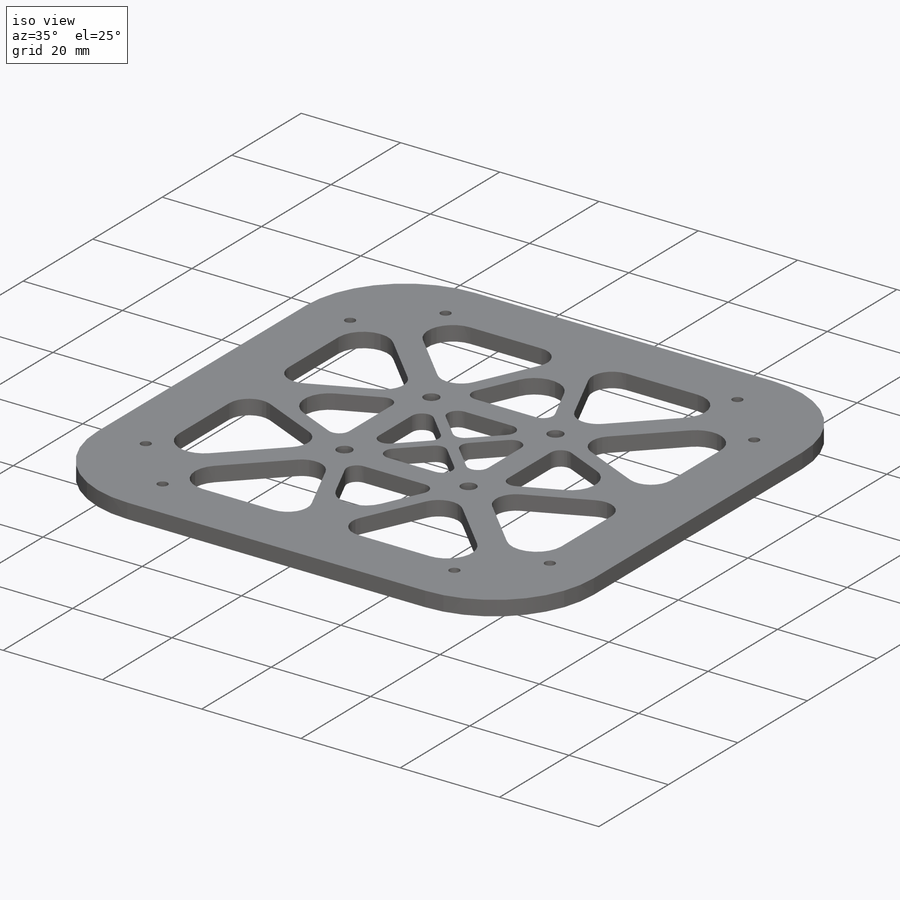
[diagram: iso view]
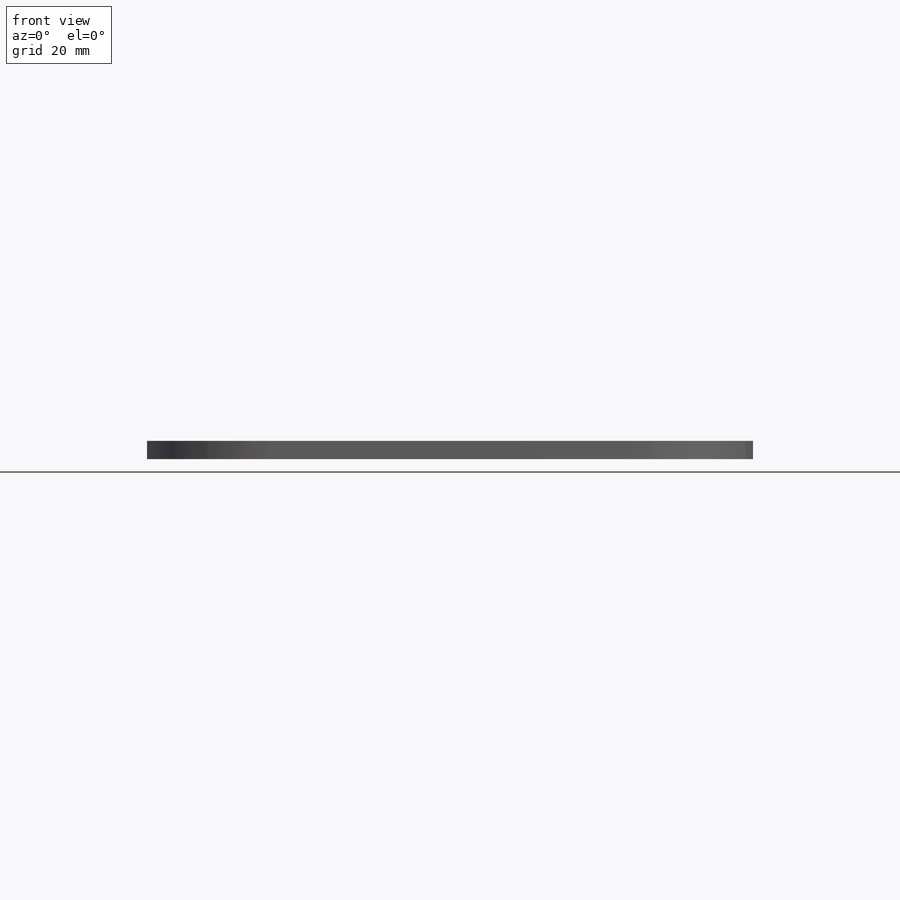
[diagram: front view]
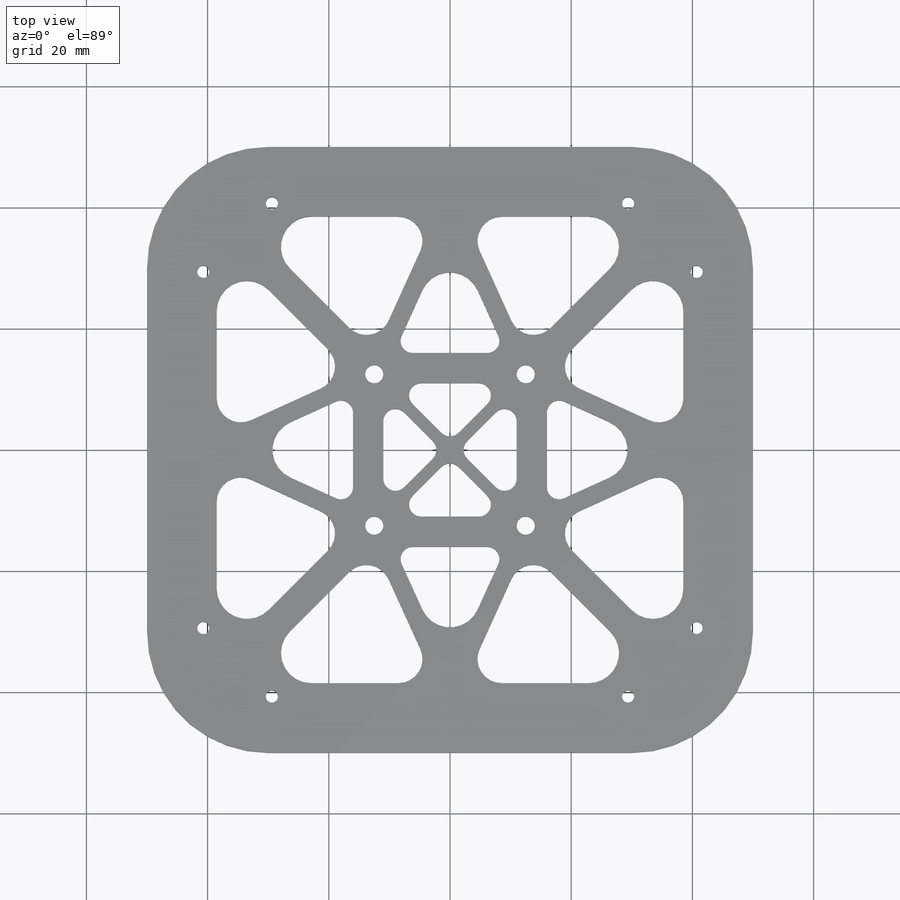
[diagram: top view]
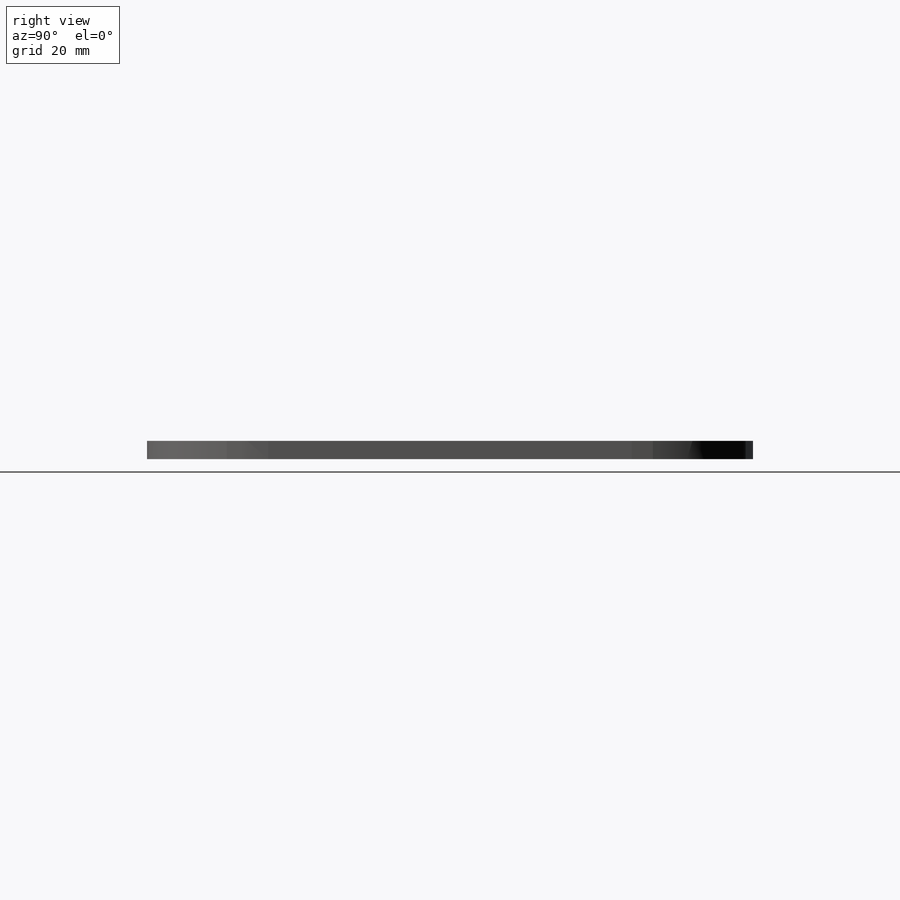
[diagram: right view]
SOLIDWORKS PART (.sldprt)
format: sldprt  version: not decoded by parser v0  size: 409,088 bytes
history: native  units: mm
features: fillet x4, plane x3, material x1, sketch x1, extrude x1 (+8 scaffold rows collapsed)
feature tree (18):
  scaffold x8  (default folders/planes/origin — collapsed)
  material  "Matériau <non spécifié>"
  plane  "Plan de face"
  plane  "Plan de dessus"
  plane  "Plan de droite"
  sketch  "Esquisse1"  dims[c1.D18=~1.382437mm c1.D15=~1.587021mm c2.D18=~1.623784mm c2.D1=50.0mm c2.D2=100.0mm c2.D3=50.0mm c2.D4=100.0mm c2.D5=25.0mm c2.D6=1.5mm c2.D7=1.0mm c2.D8=1.0mm c3.D1=1.5mm c3.D3=10.0mm c3.D5=50.0mm c3.D6=50.0mm c3.D8=25.0mm c3.D9=3.5mm c3.D10=~14.043683mm c4.D10=~1.996443deg c5.D10=~15.68429mm c6.D10=0.0deg c7.D10=1.5mm c7.D11=~18.13119mm c8.D11=0.0deg c9.D11=1.5mm c9.D12=1.5mm c9.D13=1.5mm c9.D14=~28.777651mm c10.D14=0.0deg c11.D14=2.5mm c11.D15=~28.538838mm c12.D15=360.0deg c12.D16=1.5mm c12.D17=2.5mm c13.D15=8.0mm c13.D18=8.0mm c14.D15=7.0mm c14.D18=8.0mm c14.D19=8.0mm c14.D17=4.0 c14.D20=4.0]
  extrude  "Boss.-Extru.1"  Depth=3mm
  fillet  "Congé1"  Radius=20mm
  fillet  "Congé2"  Radius=5mm
  fillet  "Congé3"  Radius=4mm
  fillet  "Congé4"  Radius=2mm
decode coverage: 6 of 6 modeling features carry decoded parameters
note: ~ marks probable driven/reference dimensions
note: suppression state not decoded; provenance and decode notes live in map.json
